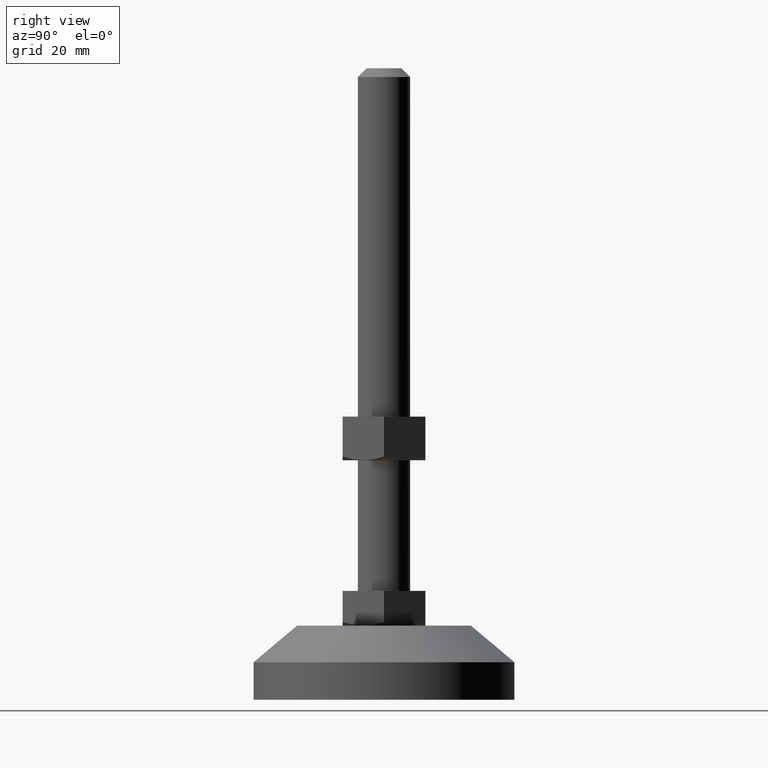
[diagram: clean part render]
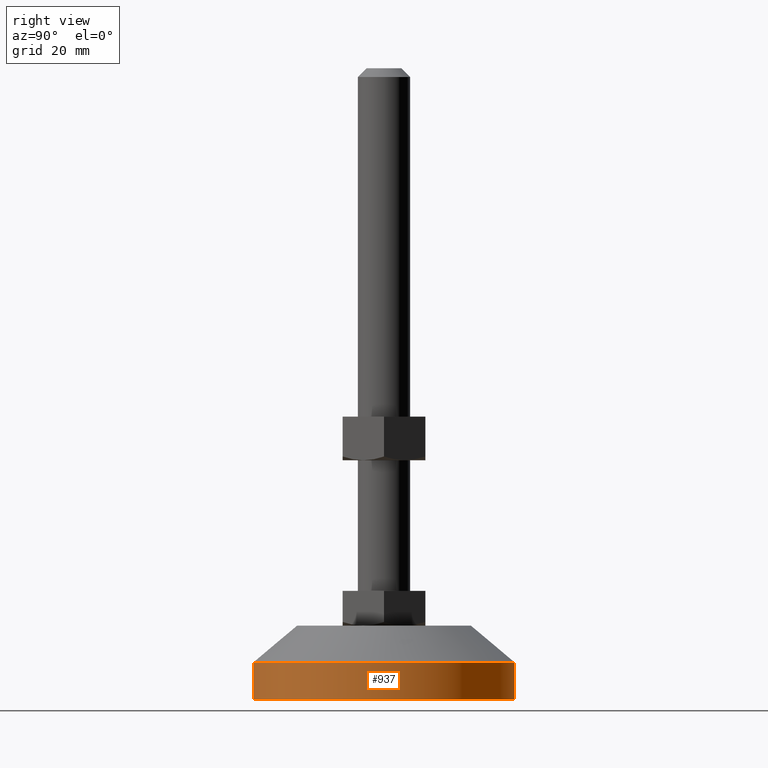
[diagram: same view with one face highlighted and labeled with its STEP entity id]
A machine part, right view. The second image highlights one B-rep face of the part: STEP entity #937.
In plain terms, the highlighted face is a freeform B-spline surface patch.
Its self-contained STEP definition (entity closure, byte-faithful):
#740=CARTESIAN_POINT('',(-1.831432158598474,29.944045422218281,-1.942890E-016));
#741=VERTEX_POINT('',#740);
#755=CARTESIAN_POINT('',(30.0,0.0,0.0));
#756=VERTEX_POINT('',#755);
#757=CARTESIAN_POINT('',(-1.831432158598474,29.944045422218284,-1.942890E-016));
#758=CARTESIAN_POINT('',(-0.916570851548897,29.999999999990493,-1.914970E-016));
#759=CARTESIAN_POINT('',(5.673108E-013,29.999999999990639,-1.885290E-016));
#760=CARTESIAN_POINT('',(30.000000000000274,29.999999999995467,-9.138451E-017));
#761=CARTESIAN_POINT('',(30.0,0.0,0.0));
#769=(BOUNDED_CURVE()B_SPLINE_CURVE(2,(#757,#758,#759,#760,#761),.UNSPECIFIED.,.F.,.U.)B_SPLINE_CURVE_WITH_KNOTS((3,2,3),(0.239333100695523,0.250000000000000,0.500000000000000),.UNSPECIFIED.)CURVE()GEOMETRIC_REPRESENTATION_ITEM()RATIONAL_B_SPLINE_CURVE((0.976072338405704,0.987502950111811,1.0,0.707106781186547,1.0))REPRESENTATION_ITEM(''));
#770=EDGE_CURVE('',#741,#756,#769,.T.);
#772=CARTESIAN_POINT('',(1.831432158598472,-29.944045422218281,-1.179612E-015));
#773=VERTEX_POINT('',#772);
#774=CARTESIAN_POINT('',(30.0,0.0,0.0));
#775=CARTESIAN_POINT('',(29.999999999999716,-28.221204694492794,-5.898060E-016));
#776=CARTESIAN_POINT('',(1.831432158598472,-29.944045422218281,-1.179612E-015));
#784=(BOUNDED_CURVE()B_SPLINE_CURVE(2,(#774,#775,#776),.UNSPECIFIED.,.F.,.U.)B_SPLINE_CURVE_WITH_KNOTS((3,3),(0.500000000000000,0.739333100695523),.UNSPECIFIED.)CURVE()GEOMETRIC_REPRESENTATION_ITEM()RATIONAL_B_SPLINE_CURVE((1.0,0.719603831074737,0.976072338405704))REPRESENTATION_ITEM(''));
#785=EDGE_CURVE('',#756,#773,#784,.T.);
#871=CARTESIAN_POINT('',(-1.831456186045710,29.944043952655999,8.824229100000002));
#872=CARTESIAN_POINT('',(28.112587766610297,31.775500138701705,8.824229100000002));
#873=CARTESIAN_POINT('',(29.944043952655999,1.831456186045710,8.824229100000002));
#874=CARTESIAN_POINT('',(31.775500138701705,-28.112587766610297,8.824229100000002));
#875=CARTESIAN_POINT('',(1.831456186045710,-29.944043952655999,8.824229100000002));
#876=CARTESIAN_POINT('',(-1.831456186045710,29.944043952655999,-0.220605727500001));
#877=CARTESIAN_POINT('',(28.112587766610297,31.775500138701705,-0.220605727500001));
#878=CARTESIAN_POINT('',(29.944043952655999,1.831456186045710,-0.220605727500001));
#879=CARTESIAN_POINT('',(31.775500138701705,-28.112587766610297,-0.220605727500001));
#880=CARTESIAN_POINT('',(1.831456186045710,-29.944043952655999,-0.220605727500001));
#888=(BOUNDED_SURFACE()B_SPLINE_SURFACE(2,1,((#871,#876),(#872,#877),(#873,#878),(#874,#879),(#875,#880)),.UNSPECIFIED.,.F.,.F.,.U.)B_SPLINE_SURFACE_WITH_KNOTS((3,2,3),(2,2),(0.0,49.705627484771391,99.411254969542782),(0.0,9.044834827500003),.UNSPECIFIED.)GEOMETRIC_REPRESENTATION_ITEM()RATIONAL_B_SPLINE_SURFACE(((1.0,1.0),(0.707106781186548,0.707106781186548),(1.0,1.0),(0.707106781186548,0.707106781186548),(1.0,1.0)))REPRESENTATION_ITEM('')SURFACE());
#889=CARTESIAN_POINT('',(-1.831444023938147,29.944044668167219,8.609004023740342));
#890=VERTEX_POINT('',#889);
#891=CARTESIAN_POINT('',(30.0,0.0,8.609004000000001));
#892=VERTEX_POINT('',#891);
#893=CARTESIAN_POINT('',(-1.831444023938146,29.944044668167219,8.609004023740342));
#894=CARTESIAN_POINT('',(-0.916582688409322,29.999999239093672,8.609004023399185));
#895=CARTESIAN_POINT('',(-0.000011798190031,29.999999250886891,8.609004023036521));
#896=CARTESIAN_POINT('',(29.999994281136242,29.999999636887026,8.609004011166352));
#897=CARTESIAN_POINT('',(30.0,0.0,8.609004000000001));
#905=(BOUNDED_CURVE()B_SPLINE_CURVE(2,(#893,#894,#895,#896,#897),.UNSPECIFIED.,.F.,.U.)B_SPLINE_CURVE_WITH_KNOTS((3,2,3),(0.239333102385685,0.250000000000000,0.500000000000000),.UNSPECIFIED.)CURVE()GEOMETRIC_REPRESENTATION_ITEM()RATIONAL_B_SPLINE_CURVE((0.976072342028049,0.987502952091959,1.0,0.707106781186547,1.0))REPRESENTATION_ITEM(''));
#906=EDGE_CURVE('',#890,#892,#905,.T.);
#907=ORIENTED_EDGE('',*,*,#906,.T.);
#908=CARTESIAN_POINT('',(1.831444023938148,-29.944044668167219,8.609004023740342));
#909=VERTEX_POINT('',#908);
#910=CARTESIAN_POINT('',(30.0,0.0,8.609004000000001));
#911=CARTESIAN_POINT('',(30.000006079326262,-28.221204585451574,8.609004011870171));
#912=CARTESIAN_POINT('',(1.831444023938148,-29.944044668167226,8.609004023740342));
#920=(BOUNDED_CURVE()B_SPLINE_CURVE(2,(#910,#911,#912),.UNSPECIFIED.,.F.,.U.)B_SPLINE_CURVE_WITH_KNOTS((3,3),(0.500000000000000,0.739333102385685),.UNSPECIFIED.)CURVE()GEOMETRIC_REPRESENTATION_ITEM()RATIONAL_B_SPLINE_CURVE((1.0,0.719603829094588,0.976072342028049))REPRESENTATION_ITEM(''));
#921=EDGE_CURVE('',#892,#909,#920,.T.);
#922=ORIENTED_EDGE('',*,*,#921,.T.);
#923=CARTESIAN_POINT('',(1.831444023938148,-29.944044668167219,8.609004023740342));
#924=CARTESIAN_POINT('',(1.831432158598472,-29.944045422218281,-1.179612E-015));
#925=QUASI_UNIFORM_CURVE('',1,(#923,#924),.UNSPECIFIED.,.F.,.U.);
#926=EDGE_CURVE('',#909,#773,#925,.T.);
#927=ORIENTED_EDGE('',*,*,#926,.T.);
#928=ORIENTED_EDGE('',*,*,#785,.F.);
#929=ORIENTED_EDGE('',*,*,#770,.F.);
#930=CARTESIAN_POINT('',(-1.831444023938147,29.944044668167219,8.609004023740342));
#931=CARTESIAN_POINT('',(-1.831432158598474,29.944045422218281,-1.942890E-016));
#932=QUASI_UNIFORM_CURVE('',1,(#930,#931),.UNSPECIFIED.,.F.,.U.);
#933=EDGE_CURVE('',#890,#741,#932,.T.);
#934=ORIENTED_EDGE('',*,*,#933,.F.);
#935=EDGE_LOOP('',(#907,#922,#927,#928,#929,#934));
#936=FACE_OUTER_BOUND('',#935,.T.);
#937=ADVANCED_FACE('',(#936),#888,.T.);